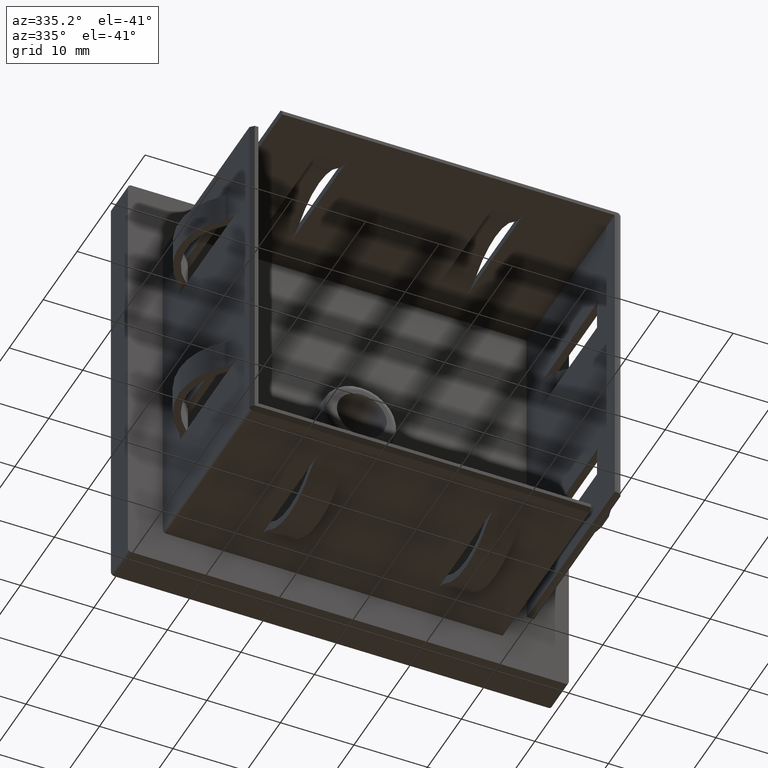
[diagram: clean part render]
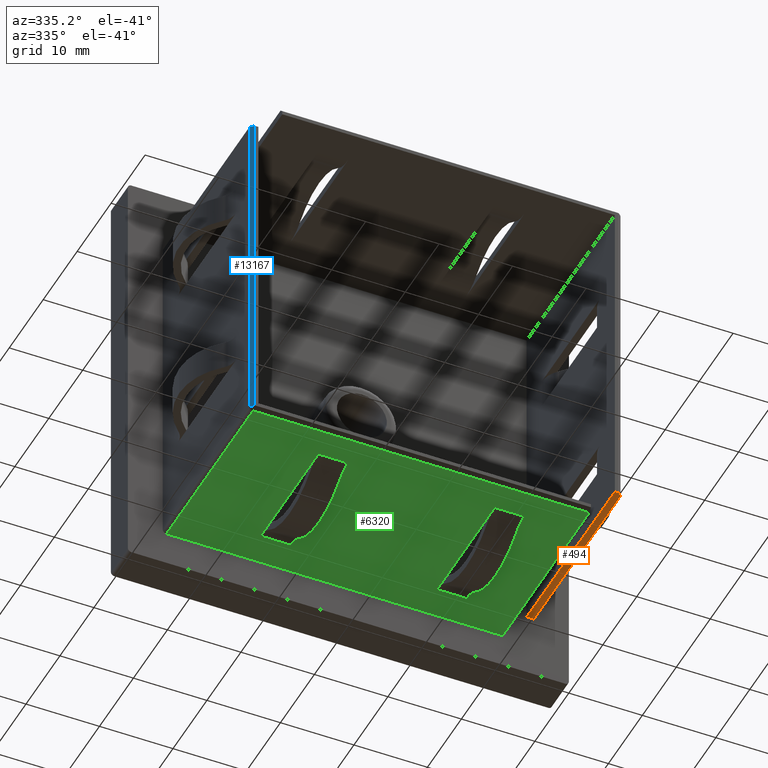
[diagram: same view with three faces highlighted in distinct colors, each labeled with its STEP entity id]
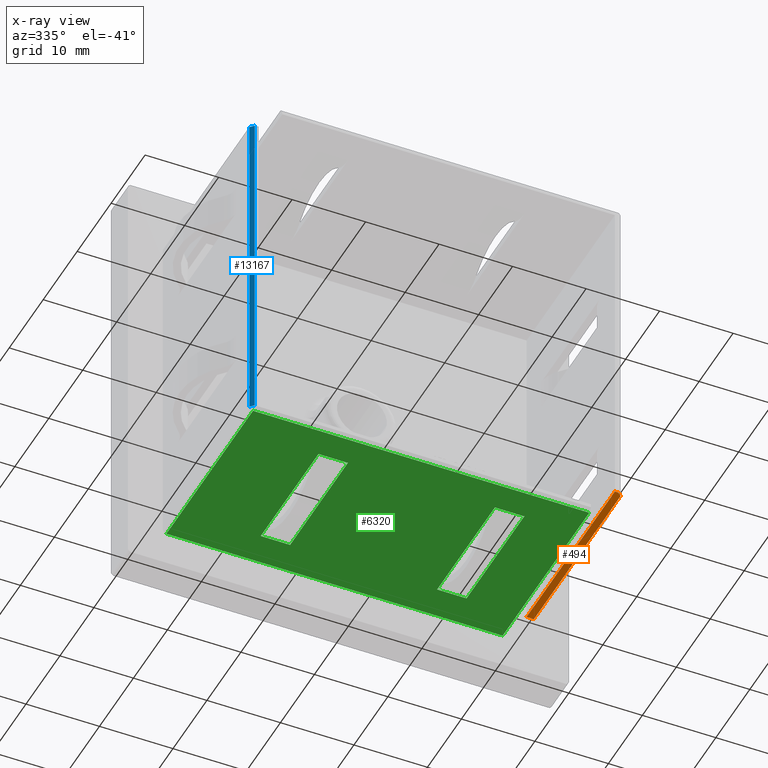
[diagram: x-ray of the same camera — body ghosted, the three highlighted faces saturated]
A machine part, auxiliary view with three faces highlighted in distinct colors.
The next image is the same camera in x-ray (body ghosted, the three faces saturated) — at least one of them is partly hidden behind the body in this view.
Their STEP definitions:

[orange] entity #494 — the highlighted planar face has unit normal (0, 0, 1).
#12 = EDGE_CURVE ( 'NONE', #2334, #16635, #15248, .T. ) ;
#462 = EDGE_CURVE ( 'NONE', #15980, #16635, #9475, .T. ) ;
#494 = ADVANCED_FACE ( 'NONE', ( #13000 ), #16700, .F. ) ;
#676 = VECTOR ( 'NONE', #17878, 1000.000000000000100 ) ;
#1930 = AXIS2_PLACEMENT_3D ( 'NONE', #6754, #13991, #16637 ) ;
#2113 = EDGE_CURVE ( 'NONE', #15980, #13623, #5222, .T. ) ;
#2334 = VERTEX_POINT ( 'NONE', #5662 ) ;
#2464 = ORIENTED_EDGE ( 'NONE', *, *, #462, .F. ) ;
#2757 = CARTESIAN_POINT ( 'NONE',  ( 24.25000000000000000, 0.0000000000000000000, -21.00000000000000400 ) ) ;
#3038 = CARTESIAN_POINT ( 'NONE',  ( 25.25000000000000000, -26.00000000000000000, -21.00000000000000400 ) ) ;
#3410 = CARTESIAN_POINT ( 'NONE',  ( 25.25000000000000000, 0.0000000000000000000, -21.00000000000000400 ) ) ;
#3945 = VECTOR ( 'NONE', #12902, 1000.000000000000000 ) ;
#5222 = LINE ( 'NONE', #17766, #10963 ) ;
#5662 = CARTESIAN_POINT ( 'NONE',  ( 25.25000000000000000, -25.49999999999999600, -21.00000000000000400 ) ) ;
#6113 = EDGE_CURVE ( 'NONE', #2334, #9941, #18113, .T. ) ;
#6367 = CARTESIAN_POINT ( 'NONE',  ( 25.25000000000000000, -26.00000000000000000, -21.00000000000000400 ) ) ;
#6754 = CARTESIAN_POINT ( 'NONE',  ( 25.25000000000000000, -26.00000000000000000, -21.00000000000000400 ) ) ;
#6846 = ORIENTED_EDGE ( 'NONE', *, *, #7404, .T. ) ;
#7404 = EDGE_CURVE ( 'NONE', #13623, #9941, #13677, .T. ) ;
#8014 = CARTESIAN_POINT ( 'NONE',  ( 24.75000000000001100, -26.00000000000000000, -21.00000000000000400 ) ) ;
#8861 = CARTESIAN_POINT ( 'NONE',  ( 24.25000000000000000, -26.00000000000000000, -21.00000000000000400 ) ) ;
#9207 = DIRECTION ( 'NONE',  ( -0.0000000000000000000, 1.000000000000000000, -0.0000000000000000000 ) ) ;
#9313 = DIRECTION ( 'NONE',  ( -0.0000000000000000000, 1.000000000000000000, -0.0000000000000000000 ) ) ;
#9475 = LINE ( 'NONE', #3038, #3945 ) ;
#9909 = VECTOR ( 'NONE', #10381, 1000.000000000000000 ) ;
#9924 = ORIENTED_EDGE ( 'NONE', *, *, #12, .T. ) ;
#9941 = VERTEX_POINT ( 'NONE', #16268 ) ;
#10381 = DIRECTION ( 'NONE',  ( 1.000000000000000000, -0.0000000000000000000, -0.0000000000000000000 ) ) ;
#10940 = ORIENTED_EDGE ( 'NONE', *, *, #6113, .F. ) ;
#10963 = VECTOR ( 'NONE', #9313, 1000.000000000000000 ) ;
#12902 = DIRECTION ( 'NONE',  ( 1.000000000000000000, -0.0000000000000000000, -0.0000000000000000000 ) ) ;
#13000 = FACE_OUTER_BOUND ( 'NONE', #16971, .T. ) ;
#13623 = VERTEX_POINT ( 'NONE', #2757 ) ;
#13677 = LINE ( 'NONE', #3410, #9909 ) ;
#13754 = ORIENTED_EDGE ( 'NONE', *, *, #2113, .T. ) ;
#13929 = VECTOR ( 'NONE', #9207, 1000.000000000000000 ) ;
#13991 = DIRECTION ( 'NONE',  ( 0.0000000000000000000, 0.0000000000000000000, 1.000000000000000000 ) ) ;
#15248 = LINE ( 'NONE', #8014, #676 ) ;
#15980 = VERTEX_POINT ( 'NONE', #8861 ) ;
#16254 = CARTESIAN_POINT ( 'NONE',  ( 24.75000000000001100, -26.00000000000000000, -21.00000000000000400 ) ) ;
#16268 = CARTESIAN_POINT ( 'NONE',  ( 25.25000000000000000, 0.0000000000000000000, -21.00000000000000400 ) ) ;
#16635 = VERTEX_POINT ( 'NONE', #16254 ) ;
#16637 = DIRECTION ( 'NONE',  ( 1.000000000000000000, 0.0000000000000000000, -0.0000000000000000000 ) ) ;
#16700 = PLANE ( 'NONE',  #1930 ) ;
#16971 = EDGE_LOOP ( 'NONE', ( #10940, #9924, #2464, #13754, #6846 ) ) ;
#17766 = CARTESIAN_POINT ( 'NONE',  ( 24.25000000000000000, -26.00000000000000000, -21.00000000000000400 ) ) ;
#17878 = DIRECTION ( 'NONE',  ( -0.7071067811865379100, -0.7071067811865570100, -0.0000000000000000000 ) ) ;
#18113 = LINE ( 'NONE', #6367, #13929 ) ;

[blue] entity #13167 — the highlighted planar face has unit normal (-0.7071, -0.7071, -0).
#32 = DIRECTION ( 'NONE',  ( -0.7071067811865378000, 0.7071067811865573400, 4.906538933386861100E-015 ) ) ;
#241 = DIRECTION ( 'NONE',  ( 1.500301384628589900E-016, 0.0000000000000000000, -1.000000000000000000 ) ) ;
#544 = EDGE_CURVE ( 'NONE', #1533, #11735, #8807, .T. ) ;
#561 = CARTESIAN_POINT ( 'NONE',  ( -24.75000000000005700, -25.99999999999996400, 21.00000000000000000 ) ) ;
#1259 = LINE ( 'NONE', #561, #2788 ) ;
#1533 = VERTEX_POINT ( 'NONE', #15657 ) ;
#1739 = DIRECTION ( 'NONE',  ( -1.500301384628589900E-016, 0.0000000000000000000, 1.000000000000000000 ) ) ;
#2788 = VECTOR ( 'NONE', #10400, 1000.000000000000100 ) ;
#3679 = ORIENTED_EDGE ( 'NONE', *, *, #5026, .F. ) ;
#3847 = EDGE_CURVE ( 'NONE', #11735, #4380, #13781, .T. ) ;
#4380 = VERTEX_POINT ( 'NONE', #16157 ) ;
#4464 = CARTESIAN_POINT ( 'NONE',  ( -24.75000000000001400, -26.00000000000000000, -24.74999999999999600 ) ) ;
#4826 = VECTOR ( 'NONE', #241, 1000.000000000000000 ) ;
#5026 = EDGE_CURVE ( 'NONE', #4380, #12248, #16181, .T. ) ;
#5763 = ORIENTED_EDGE ( 'NONE', *, *, #17057, .F. ) ;
#6125 = CARTESIAN_POINT ( 'NONE',  ( -24.75000000000001400, -26.00000000000000000, -24.75000000000000000 ) ) ;
#6223 = VECTOR ( 'NONE', #12326, 1000.000000000000000 ) ;
#6971 = FACE_OUTER_BOUND ( 'NONE', #10327, .T. ) ;
#7604 = CARTESIAN_POINT ( 'NONE',  ( -25.25000000000000700, -25.50000000000000000, 21.00000000000000000 ) ) ;
#8751 = DIRECTION ( 'NONE',  ( -0.7071067811865571200, -0.7071067811865379100, -1.060873282894457000E-016 ) ) ;
#8807 = LINE ( 'NONE', #4464, #4826 ) ;
#9275 = ORIENTED_EDGE ( 'NONE', *, *, #3847, .F. ) ;
#10327 = EDGE_LOOP ( 'NONE', ( #5763, #3679, #9275, #14549 ) ) ;
#10400 = DIRECTION ( 'NONE',  ( 0.7071067811865379100, -0.7071067811865570100, 2.453269466693363500E-015 ) ) ;
#11735 = VERTEX_POINT ( 'NONE', #6125 ) ;
#11784 = VECTOR ( 'NONE', #32, 1000.000000000000000 ) ;
#12147 = AXIS2_PLACEMENT_3D ( 'NONE', #12814, #8751, #1739 ) ;
#12248 = VERTEX_POINT ( 'NONE', #7604 ) ;
#12265 = CARTESIAN_POINT ( 'NONE',  ( -25.25000000000000700, -25.50000000000000000, 21.00000000000000000 ) ) ;
#12326 = DIRECTION ( 'NONE',  ( -1.500301384628589900E-016, 0.0000000000000000000, 1.000000000000000000 ) ) ;
#12814 = CARTESIAN_POINT ( 'NONE',  ( -24.75000000000001800, -26.00000000000000000, -3.713245926955763000E-015 ) ) ;
#13167 = ADVANCED_FACE ( 'NONE', ( #6971 ), #17165, .T. ) ;
#13781 = LINE ( 'NONE', #14328, #11784 ) ;
#14328 = CARTESIAN_POINT ( 'NONE',  ( -24.75000000000001400, -26.00000000000000000, -24.75000000000000000 ) ) ;
#14549 = ORIENTED_EDGE ( 'NONE', *, *, #544, .F. ) ;
#15657 = CARTESIAN_POINT ( 'NONE',  ( -24.75000000000002100, -26.00000000000000000, 21.00000000000000000 ) ) ;
#16157 = CARTESIAN_POINT ( 'NONE',  ( -25.25000000000000000, -25.50000000000000000, -24.74999999999999600 ) ) ;
#16181 = LINE ( 'NONE', #12265, #6223 ) ;
#17057 = EDGE_CURVE ( 'NONE', #12248, #1533, #1259, .T. ) ;
#17165 = PLANE ( 'NONE',  #12147 ) ;

[green] entity #6320 — the highlighted planar face has unit normal (-0, 0, 1).
#6 = VECTOR ( 'NONE', #1245, 1000.000000000000000 ) ;
#263 = VERTEX_POINT ( 'NONE', #14793 ) ;
#567 = EDGE_LOOP ( 'NONE', ( #13954, #14218, #12314, #9294, #13283, #4793, #9864, #4407 ) ) ;
#696 = CARTESIAN_POINT ( 'NONE',  ( -24.75000000000000000, -25.50000000000000000, -25.25000000000000000 ) ) ;
#703 = VERTEX_POINT ( 'NONE', #2197 ) ;
#742 = DIRECTION ( 'NONE',  ( 1.000000000000000000, -0.0000000000000000000, 1.077467997501122600E-016 ) ) ;
#831 = CARTESIAN_POINT ( 'NONE',  ( 10.00000000000000200, -26.00000000000000000, -25.25000000000000000 ) ) ;
#836 = CARTESIAN_POINT ( 'NONE',  ( 14.00000000000000200, -21.50000000000000700, -25.24999999999999300 ) ) ;
#867 = EDGE_CURVE ( 'NONE', #10665, #9807, #3076, .T. ) ;
#922 = ORIENTED_EDGE ( 'NONE', *, *, #14111, .F. ) ;
#1090 = LINE ( 'NONE', #5821, #3066 ) ;
#1226 = CARTESIAN_POINT ( 'NONE',  ( -13.99999999999999600, -21.50000000000000400, -25.25000000000000000 ) ) ;
#1245 = DIRECTION ( 'NONE',  ( -1.000000000000000000, -0.0000000000000000000, -1.077467997501122600E-016 ) ) ;
#1297 = CARTESIAN_POINT ( 'NONE',  ( 21.00000000000000400, -26.00000000000000000, -25.25000000000000000 ) ) ;
#1511 = CARTESIAN_POINT ( 'NONE',  ( 14.00000000000000400, -7.343120351538525300, -25.25000000000000000 ) ) ;
#1652 = DIRECTION ( 'NONE',  ( 0.0000000000000000000, 1.000000000000000000, -0.0000000000000000000 ) ) ;
#1747 = EDGE_CURVE ( 'NONE', #14776, #6924, #10535, .T. ) ;
#1940 = VECTOR ( 'NONE', #3149, 1000.000000000000000 ) ;
#1971 = EDGE_CURVE ( 'NONE', #2009, #8649, #15204, .T. ) ;
#2009 = VERTEX_POINT ( 'NONE', #3264 ) ;
#2197 = CARTESIAN_POINT ( 'NONE',  ( -9.999999999999996400, -7.343120351538519900, -25.25000000000000000 ) ) ;
#2285 = EDGE_LOOP ( 'NONE', ( #3431, #6658, #4467, #7459, #4280, #10781, #922, #6268 ) ) ;
#2381 = DIRECTION ( 'NONE',  ( -1.000000000000000000, 0.0000000000000000000, -0.0000000000000000000 ) ) ;
#2490 = CARTESIAN_POINT ( 'NONE',  ( 14.00000000000000200, -4.500000000000003600, -25.24999999999999600 ) ) ;
#2958 = VECTOR ( 'NONE', #18210, 1000.000000000000000 ) ;
#3007 = CARTESIAN_POINT ( 'NONE',  ( 13.99999999999999800, -26.00000000000000000, -25.25000000000000000 ) ) ;
#3066 = VECTOR ( 'NONE', #1652, 1000.000000000000000 ) ;
#3076 = LINE ( 'NONE', #13972, #13900 ) ;
#3149 = DIRECTION ( 'NONE',  ( 1.000000000000000000, 0.0000000000000000000, 0.0000000000000000000 ) ) ;
#3209 = LINE ( 'NONE', #10582, #14044 ) ;
#3264 = CARTESIAN_POINT ( 'NONE',  ( -13.99999999999999600, -7.343120351538519900, -25.25000000000000000 ) ) ;
#3431 = ORIENTED_EDGE ( 'NONE', *, *, #6254, .F. ) ;
#3531 = VECTOR ( 'NONE', #12895, 1000.000000000000000 ) ;
#3625 = VECTOR ( 'NONE', #742, 1000.000000000000000 ) ;
#3740 = EDGE_CURVE ( 'NONE', #10285, #11443, #9569, .T. ) ;
#3956 = DIRECTION ( 'NONE',  ( 0.0000000000000000000, -1.000000000000000000, 0.0000000000000000000 ) ) ;
#3968 = CARTESIAN_POINT ( 'NONE',  ( -13.99999999999999600, -18.65687964846148400, -25.25000000000000000 ) ) ;
#4080 = CARTESIAN_POINT ( 'NONE',  ( 21.00000000000000400, -25.50000000000000000, -25.25000000000000000 ) ) ;
#4280 = ORIENTED_EDGE ( 'NONE', *, *, #11917, .T. ) ;
#4407 = ORIENTED_EDGE ( 'NONE', *, *, #18050, .F. ) ;
#4436 = EDGE_CURVE ( 'NONE', #18006, #7757, #8885, .T. ) ;
#4467 = ORIENTED_EDGE ( 'NONE', *, *, #3740, .T. ) ;
#4546 = EDGE_CURVE ( 'NONE', #13485, #9807, #4670, .T. ) ;
#4595 = EDGE_CURVE ( 'NONE', #11387, #263, #6905, .T. ) ;
#4670 = LINE ( 'NONE', #15503, #16415 ) ;
#4793 = ORIENTED_EDGE ( 'NONE', *, *, #867, .F. ) ;
#4829 = CARTESIAN_POINT ( 'NONE',  ( -9.999999999999996400, -21.50000000000000400, -25.24999999999999300 ) ) ;
#4859 = CARTESIAN_POINT ( 'NONE',  ( -13.99999999999999600, -26.00000000000000000, -25.25000000000000000 ) ) ;
#4994 = EDGE_CURVE ( 'NONE', #703, #10665, #17068, .T. ) ;
#5257 = CARTESIAN_POINT ( 'NONE',  ( -24.75000000000000000, -25.50000000000000000, -25.25000000000000000 ) ) ;
#5324 = DIRECTION ( 'NONE',  ( 0.0000000000000000000, -1.000000000000000000, 0.0000000000000000000 ) ) ;
#5546 = CARTESIAN_POINT ( 'NONE',  ( -13.99999999999999600, -26.00000000000000000, -25.25000000000000000 ) ) ;
#5738 = VECTOR ( 'NONE', #15167, 1000.000000000000000 ) ;
#5821 = CARTESIAN_POINT ( 'NONE',  ( 10.00000000000000200, -26.00000000000000000, -25.25000000000000000 ) ) ;
#5919 = EDGE_LOOP ( 'NONE', ( #14944, #9964, #12640, #11473 ) ) ;
#6254 = EDGE_CURVE ( 'NONE', #7527, #11387, #13479, .T. ) ;
#6268 = ORIENTED_EDGE ( 'NONE', *, *, #4595, .F. ) ;
#6308 = VERTEX_POINT ( 'NONE', #8388 ) ;
#6317 = AXIS2_PLACEMENT_3D ( 'NONE', #12813, #14191, #11579 ) ;
#6320 = ADVANCED_FACE ( 'NONE', ( #16362, #11231, #16341 ), #11390, .F. ) ;
#6357 = CARTESIAN_POINT ( 'NONE',  ( 14.00000000000000400, -18.65687964846148000, -25.25000000000000000 ) ) ;
#6658 = ORIENTED_EDGE ( 'NONE', *, *, #7091, .T. ) ;
#6739 = CARTESIAN_POINT ( 'NONE',  ( 13.99999999999999800, -26.00000000000000000, -25.25000000000000000 ) ) ;
#6905 = LINE ( 'NONE', #15684, #7793 ) ;
#6924 = VERTEX_POINT ( 'NONE', #12441 ) ;
#7012 = VERTEX_POINT ( 'NONE', #11083 ) ;
#7091 = EDGE_CURVE ( 'NONE', #7527, #10285, #11677, .T. ) ;
#7217 = DIRECTION ( 'NONE',  ( 0.0000000000000000000, 1.000000000000000000, -0.0000000000000000000 ) ) ;
#7361 = VERTEX_POINT ( 'NONE', #11680 ) ;
#7459 = ORIENTED_EDGE ( 'NONE', *, *, #7556, .T. ) ;
#7527 = VERTEX_POINT ( 'NONE', #836 ) ;
#7556 = EDGE_CURVE ( 'NONE', #11443, #11457, #11956, .T. ) ;
#7560 = VECTOR ( 'NONE', #10246, 1000.000000000000000 ) ;
#7700 = DIRECTION ( 'NONE',  ( 0.0000000000000000000, 1.000000000000000000, -0.0000000000000000000 ) ) ;
#7757 = VERTEX_POINT ( 'NONE', #696 ) ;
#7793 = VECTOR ( 'NONE', #12579, 1000.000000000000000 ) ;
#7939 = VECTOR ( 'NONE', #7217, 1000.000000000000000 ) ;
#8107 = EDGE_CURVE ( 'NONE', #7012, #7361, #17761, .T. ) ;
#8279 = CARTESIAN_POINT ( 'NONE',  ( 13.99999999999999800, -26.00000000000000000, -25.25000000000000000 ) ) ;
#8388 = CARTESIAN_POINT ( 'NONE',  ( 21.00000000000000400, 0.0000000000000000000, -25.25000000000000000 ) ) ;
#8627 = VECTOR ( 'NONE', #13845, 1000.000000000000000 ) ;
#8649 = VERTEX_POINT ( 'NONE', #3968 ) ;
#8885 = LINE ( 'NONE', #5257, #12862 ) ;
#9294 = ORIENTED_EDGE ( 'NONE', *, *, #10913, .T. ) ;
#9343 = CARTESIAN_POINT ( 'NONE',  ( -24.75000000000000000, 0.0000000000000000000, -25.25000000000000000 ) ) ;
#9569 = LINE ( 'NONE', #8279, #2958 ) ;
#9807 = VERTEX_POINT ( 'NONE', #4829 ) ;
#9864 = ORIENTED_EDGE ( 'NONE', *, *, #4994, .F. ) ;
#9948 = VERTEX_POINT ( 'NONE', #9343 ) ;
#9964 = ORIENTED_EDGE ( 'NONE', *, *, #4436, .T. ) ;
#10246 = DIRECTION ( 'NONE',  ( 0.0000000000000000000, -1.000000000000000000, 0.0000000000000000000 ) ) ;
#10285 = VERTEX_POINT ( 'NONE', #6357 ) ;
#10311 = LINE ( 'NONE', #14389, #1940 ) ;
#10535 = LINE ( 'NONE', #831, #14536 ) ;
#10582 = CARTESIAN_POINT ( 'NONE',  ( -24.75000000000000000, -26.00000000000000000, -25.25000000000000000 ) ) ;
#10584 = CARTESIAN_POINT ( 'NONE',  ( -13.99999999999999600, -4.500000000000003600, -25.25000000000000000 ) ) ;
#10665 = VERTEX_POINT ( 'NONE', #12120 ) ;
#10781 = ORIENTED_EDGE ( 'NONE', *, *, #1747, .F. ) ;
#10913 = EDGE_CURVE ( 'NONE', #8649, #13485, #11497, .T. ) ;
#10979 = VECTOR ( 'NONE', #13196, 1000.000000000000000 ) ;
#11083 = CARTESIAN_POINT ( 'NONE',  ( -13.99999999999999600, -4.500000000000004400, -25.25000000000000000 ) ) ;
#11231 = FACE_OUTER_BOUND ( 'NONE', #5919, .T. ) ;
#11387 = VERTEX_POINT ( 'NONE', #12953 ) ;
#11390 = PLANE ( 'NONE',  #6317 ) ;
#11443 = VERTEX_POINT ( 'NONE', #1511 ) ;
#11457 = VERTEX_POINT ( 'NONE', #14511 ) ;
#11473 = ORIENTED_EDGE ( 'NONE', *, *, #15159, .T. ) ;
#11497 = LINE ( 'NONE', #12614, #16379 ) ;
#11579 = DIRECTION ( 'NONE',  ( 1.000000000000000000, 0.0000000000000000000, 0.0000000000000000000 ) ) ;
#11677 = LINE ( 'NONE', #3007, #7939 ) ;
#11680 = CARTESIAN_POINT ( 'NONE',  ( -9.999999999999996400, -4.500000000000003600, -25.25000000000000000 ) ) ;
#11917 = EDGE_CURVE ( 'NONE', #11457, #6924, #17468, .T. ) ;
#11956 = LINE ( 'NONE', #6739, #15257 ) ;
#12120 = CARTESIAN_POINT ( 'NONE',  ( -9.999999999999996400, -18.65687964846148400, -25.25000000000000000 ) ) ;
#12222 = DIRECTION ( 'NONE',  ( 0.0000000000000000000, 1.000000000000000000, -0.0000000000000000000 ) ) ;
#12314 = ORIENTED_EDGE ( 'NONE', *, *, #1971, .T. ) ;
#12441 = CARTESIAN_POINT ( 'NONE',  ( 10.00000000000000200, -4.500000000000003600, -25.24999999999999600 ) ) ;
#12579 = DIRECTION ( 'NONE',  ( 0.0000000000000000000, 1.000000000000000000, -0.0000000000000000000 ) ) ;
#12614 = CARTESIAN_POINT ( 'NONE',  ( -13.99999999999999600, -26.00000000000000000, -25.25000000000000000 ) ) ;
#12640 = ORIENTED_EDGE ( 'NONE', *, *, #17720, .T. ) ;
#12813 = CARTESIAN_POINT ( 'NONE',  ( -25.25000000000000000, -26.00000000000000000, -25.25000000000000000 ) ) ;
#12862 = VECTOR ( 'NONE', #2381, 1000.000000000000000 ) ;
#12895 = DIRECTION ( 'NONE',  ( 0.0000000000000000000, -1.000000000000000000, 0.0000000000000000000 ) ) ;
#12953 = CARTESIAN_POINT ( 'NONE',  ( 10.00000000000000200, -21.50000000000000400, -25.25000000000000000 ) ) ;
#13172 = EDGE_CURVE ( 'NONE', #7012, #2009, #14698, .T. ) ;
#13196 = DIRECTION ( 'NONE',  ( 0.0000000000000000000, -1.000000000000000000, 0.0000000000000000000 ) ) ;
#13283 = ORIENTED_EDGE ( 'NONE', *, *, #4546, .T. ) ;
#13479 = LINE ( 'NONE', #15496, #6 ) ;
#13485 = VERTEX_POINT ( 'NONE', #1226 ) ;
#13608 = EDGE_CURVE ( 'NONE', #18006, #6308, #14351, .T. ) ;
#13845 = DIRECTION ( 'NONE',  ( -1.000000000000000000, -0.0000000000000000000, -1.077467997501122600E-016 ) ) ;
#13877 = CARTESIAN_POINT ( 'NONE',  ( 10.00000000000000400, -7.343120351538525300, -25.25000000000000000 ) ) ;
#13900 = VECTOR ( 'NONE', #3956, 1000.000000000000000 ) ;
#13954 = ORIENTED_EDGE ( 'NONE', *, *, #8107, .F. ) ;
#13970 = CARTESIAN_POINT ( 'NONE',  ( -9.999999999999996400, -26.00000000000000000, -25.25000000000000000 ) ) ;
#13972 = CARTESIAN_POINT ( 'NONE',  ( -9.999999999999996400, -26.00000000000000000, -25.25000000000000000 ) ) ;
#14044 = VECTOR ( 'NONE', #7700, 1000.000000000000000 ) ;
#14111 = EDGE_CURVE ( 'NONE', #263, #14776, #1090, .T. ) ;
#14191 = DIRECTION ( 'NONE',  ( -0.0000000000000000000, 0.0000000000000000000, 1.000000000000000000 ) ) ;
#14218 = ORIENTED_EDGE ( 'NONE', *, *, #13172, .T. ) ;
#14351 = LINE ( 'NONE', #1297, #5738 ) ;
#14389 = CARTESIAN_POINT ( 'NONE',  ( -25.25000000000000000, -0.0000000000000000000, -25.25000000000000000 ) ) ;
#14463 = CARTESIAN_POINT ( 'NONE',  ( -9.999999999999996400, -26.00000000000000000, -25.25000000000000000 ) ) ;
#14511 = CARTESIAN_POINT ( 'NONE',  ( 13.99999999999999800, -4.500000000000003600, -25.25000000000000000 ) ) ;
#14536 = VECTOR ( 'NONE', #12222, 1000.000000000000000 ) ;
#14698 = LINE ( 'NONE', #5546, #16670 ) ;
#14776 = VERTEX_POINT ( 'NONE', #13877 ) ;
#14793 = CARTESIAN_POINT ( 'NONE',  ( 10.00000000000000400, -18.65687964846148000, -25.25000000000000000 ) ) ;
#14944 = ORIENTED_EDGE ( 'NONE', *, *, #13608, .F. ) ;
#15148 = DIRECTION ( 'NONE',  ( 0.0000000000000000000, 1.000000000000000000, -0.0000000000000000000 ) ) ;
#15159 = EDGE_CURVE ( 'NONE', #9948, #6308, #10311, .T. ) ;
#15167 = DIRECTION ( 'NONE',  ( -0.0000000000000000000, 1.000000000000000000, -0.0000000000000000000 ) ) ;
#15204 = LINE ( 'NONE', #4859, #10979 ) ;
#15257 = VECTOR ( 'NONE', #15148, 1000.000000000000000 ) ;
#15496 = CARTESIAN_POINT ( 'NONE',  ( 14.00000000000000200, -21.50000000000000400, -25.24999999999999300 ) ) ;
#15503 = CARTESIAN_POINT ( 'NONE',  ( -13.99999999999999600, -21.50000000000000400, -25.24999999999999300 ) ) ;
#15684 = CARTESIAN_POINT ( 'NONE',  ( 10.00000000000000200, -26.00000000000000000, -25.25000000000000000 ) ) ;
#15744 = DIRECTION ( 'NONE',  ( 0.0000000000000000000, -1.000000000000000000, 0.0000000000000000000 ) ) ;
#16341 = FACE_BOUND ( 'NONE', #2285, .T. ) ;
#16357 = LINE ( 'NONE', #13970, #3531 ) ;
#16362 = FACE_BOUND ( 'NONE', #567, .T. ) ;
#16379 = VECTOR ( 'NONE', #5324, 1000.000000000000000 ) ;
#16415 = VECTOR ( 'NONE', #16800, 1000.000000000000000 ) ;
#16670 = VECTOR ( 'NONE', #15744, 1000.000000000000000 ) ;
#16800 = DIRECTION ( 'NONE',  ( 1.000000000000000000, -0.0000000000000000000, 1.077467997501122600E-016 ) ) ;
#17068 = LINE ( 'NONE', #14463, #7560 ) ;
#17468 = LINE ( 'NONE', #2490, #8627 ) ;
#17720 = EDGE_CURVE ( 'NONE', #7757, #9948, #3209, .T. ) ;
#17761 = LINE ( 'NONE', #10584, #3625 ) ;
#18006 = VERTEX_POINT ( 'NONE', #4080 ) ;
#18050 = EDGE_CURVE ( 'NONE', #7361, #703, #16357, .T. ) ;
#18210 = DIRECTION ( 'NONE',  ( 0.0000000000000000000, 1.000000000000000000, -0.0000000000000000000 ) ) ;